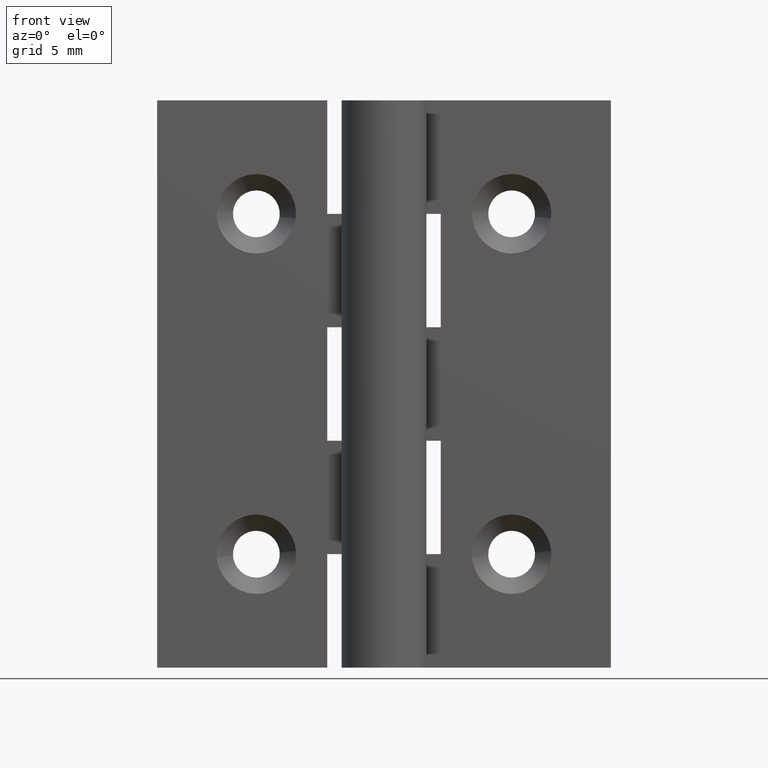
[diagram: clean part render]
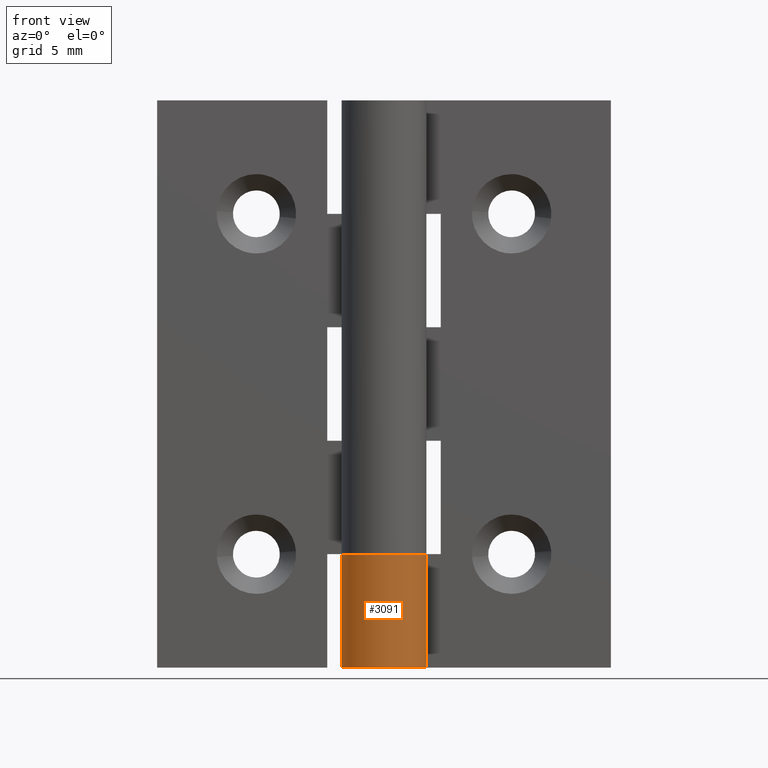
[diagram: same view with one face highlighted and labeled with its STEP entity id]
A machine part, front view. The second image highlights one B-rep face of the part: STEP entity #3091.
In plain terms, the highlighted face is a freeform B-spline surface patch.
Its self-contained STEP definition (entity closure, byte-faithful):
#2569=CARTESIAN_POINT('',(2.626309197333780,1.450000000000000,8.0));
#2570=VERTEX_POINT('',#2569);
#2571=CARTESIAN_POINT('',(0.0,3.0,8.0));
#2572=VERTEX_POINT('',#2571);
#2573=CARTESIAN_POINT('',(2.626309197333780,1.450000000000000,8.0));
#2574=CARTESIAN_POINT('',(3.733431584505770,-0.555272902071676,8.0));
#2575=CARTESIAN_POINT('',(2.090650590886091,-2.151552952364325,8.0));
#2576=CARTESIAN_POINT('',(0.447869597266413,-3.747833002656972,8.0));
#2577=CARTESIAN_POINT('',(-1.524795068197689,-2.583602136552763,8.0));
#2578=CARTESIAN_POINT('',(-3.497459733661793,-1.419371270448554,8.0));
#2579=CARTESIAN_POINT('',(-2.894028888043301,0.790314364775723,8.0));
#2580=CARTESIAN_POINT('',(-2.290598042424808,3.0,8.0));
#2581=CARTESIAN_POINT('',(0.0,3.0,8.0));
#2589=(BOUNDED_CURVE()B_SPLINE_CURVE(2,(#2573,#2574,#2575,#2576,#2577,#2578,#2579,#2580,#2581),.UNSPECIFIED.,.F.,.U.)B_SPLINE_CURVE_WITH_KNOTS((3,2,2,2,3),(0.0,0.250000000000000,0.500000000000000,0.750000000000000,1.0),.UNSPECIFIED.)CURVE()GEOMETRIC_REPRESENTATION_ITEM()RATIONAL_B_SPLINE_CURVE((1.0,0.794807562115481,1.0,0.794807562115481,1.0,0.794807562115481,1.0,0.794807562115481,1.0))REPRESENTATION_ITEM(''));
#2590=EDGE_CURVE('',#2570,#2572,#2589,.T.);
#2823=CARTESIAN_POINT('',(2.626309197333780,1.450000000000000,0.0));
#2824=VERTEX_POINT('',#2823);
#2825=CARTESIAN_POINT('',(0.0,3.0,0.0));
#2826=VERTEX_POINT('',#2825);
#2827=CARTESIAN_POINT('',(2.626309197333780,1.450000000000000,0.0));
#2828=CARTESIAN_POINT('',(3.733431584505770,-0.555272902071675,0.0));
#2829=CARTESIAN_POINT('',(2.090650590886091,-2.151552952364324,0.0));
#2830=CARTESIAN_POINT('',(0.447869597266413,-3.747833002656972,0.0));
#2831=CARTESIAN_POINT('',(-1.524795068197689,-2.583602136552764,0.0));
#2832=CARTESIAN_POINT('',(-3.497459733661792,-1.419371270448555,0.0));
#2833=CARTESIAN_POINT('',(-2.894028888043301,0.790314364775722,0.0));
#2834=CARTESIAN_POINT('',(-2.290598042424809,3.000000000000000,0.0));
#2835=CARTESIAN_POINT('',(0.0,3.0,0.0));
#2843=(BOUNDED_CURVE()B_SPLINE_CURVE(2,(#2827,#2828,#2829,#2830,#2831,#2832,#2833,#2834,#2835),.UNSPECIFIED.,.F.,.U.)B_SPLINE_CURVE_WITH_KNOTS((3,2,2,2,3),(0.0,0.250000000000000,0.500000000000000,0.750000000000000,1.0),.UNSPECIFIED.)CURVE()GEOMETRIC_REPRESENTATION_ITEM()RATIONAL_B_SPLINE_CURVE((1.0,0.794807562115481,1.0,0.794807562115481,1.0,0.794807562115481,1.0,0.794807562115481,1.0))REPRESENTATION_ITEM(''));
#2844=EDGE_CURVE('',#2824,#2826,#2843,.T.);
#2907=CARTESIAN_POINT('',(2.626309197333780,1.450000000000000,0.0));
#2908=CARTESIAN_POINT('',(2.626309197333780,1.450000000000000,8.0));
#2909=QUASI_UNIFORM_CURVE('',1,(#2907,#2908),.UNSPECIFIED.,.F.,.U.);
#2910=EDGE_CURVE('',#2824,#2570,#2909,.T.);
#3059=CARTESIAN_POINT('',(2.584887481324576,1.522615088882112,-0.200000000000000));
#3060=CARTESIAN_POINT('',(2.584887481324576,1.522615088882112,8.205000000000000));
#3061=CARTESIAN_POINT('',(4.454017153952614,-1.650537421576552,-0.200000000000001));
#3062=CARTESIAN_POINT('',(4.454017153952614,-1.650537421576552,8.205000000000002));
#3063=CARTESIAN_POINT('',(0.968449136630486,-2.839384840024272,-0.200000000000000));
#3064=CARTESIAN_POINT('',(0.968449136630486,-2.839384840024272,8.205000000000000));
#3065=CARTESIAN_POINT('',(-2.517118880691642,-4.028232258471992,-0.200000000000001));
#3066=CARTESIAN_POINT('',(-2.517118880691642,-4.028232258471992,8.205000000000002));
#3067=CARTESIAN_POINT('',(-2.976562347997527,-0.374268070349911,-0.200000000000000));
#3068=CARTESIAN_POINT('',(-2.976562347997527,-0.374268070349911,8.205000000000000));
#3069=CARTESIAN_POINT('',(-3.436005815303412,3.279696117772171,-0.200000000000001));
#3070=CARTESIAN_POINT('',(-3.436005815303412,3.279696117772171,8.205000000000002));
#3071=CARTESIAN_POINT('',(0.235377287183536,2.990752001199384,-0.200000000000000));
#3072=CARTESIAN_POINT('',(0.235377287183536,2.990752001199384,8.205000000000000));
#3080=(BOUNDED_SURFACE()B_SPLINE_SURFACE(1,2,((#3059,#3061,#3063,#3065,#3067,#3069,#3071),(#3060,#3062,#3064,#3066,#3068,#3070,#3072)),.UNSPECIFIED.,.F.,.F.,.U.)B_SPLINE_SURFACE_WITH_KNOTS((2,2),(3,2,2,3),(0.0,8.405000000000001),(0.0,5.702297214197750,11.404594428395500,17.106891642593251),.UNSPECIFIED.)GEOMETRIC_REPRESENTATION_ITEM()RATIONAL_B_SPLINE_SURFACE(((1.0,0.631578351302498,1.0,0.631578351302498,1.0,0.631578351302498,1.0),(1.0,0.631578351302498,1.0,0.631578351302498,1.0,0.631578351302498,1.0)))REPRESENTATION_ITEM('')SURFACE());
#3081=ORIENTED_EDGE('',*,*,#2910,.T.);
#3082=ORIENTED_EDGE('',*,*,#2590,.T.);
#3083=CARTESIAN_POINT('',(0.0,3.0,0.0));
#3084=CARTESIAN_POINT('',(0.0,3.0,8.0));
#3085=QUASI_UNIFORM_CURVE('',1,(#3083,#3084),.UNSPECIFIED.,.F.,.U.);
#3086=EDGE_CURVE('',#2826,#2572,#3085,.T.);
#3087=ORIENTED_EDGE('',*,*,#3086,.F.);
#3088=ORIENTED_EDGE('',*,*,#2844,.F.);
#3089=EDGE_LOOP('',(#3081,#3082,#3087,#3088));
#3090=FACE_OUTER_BOUND('',#3089,.T.);
#3091=ADVANCED_FACE('',(#3090),#3080,.T.);